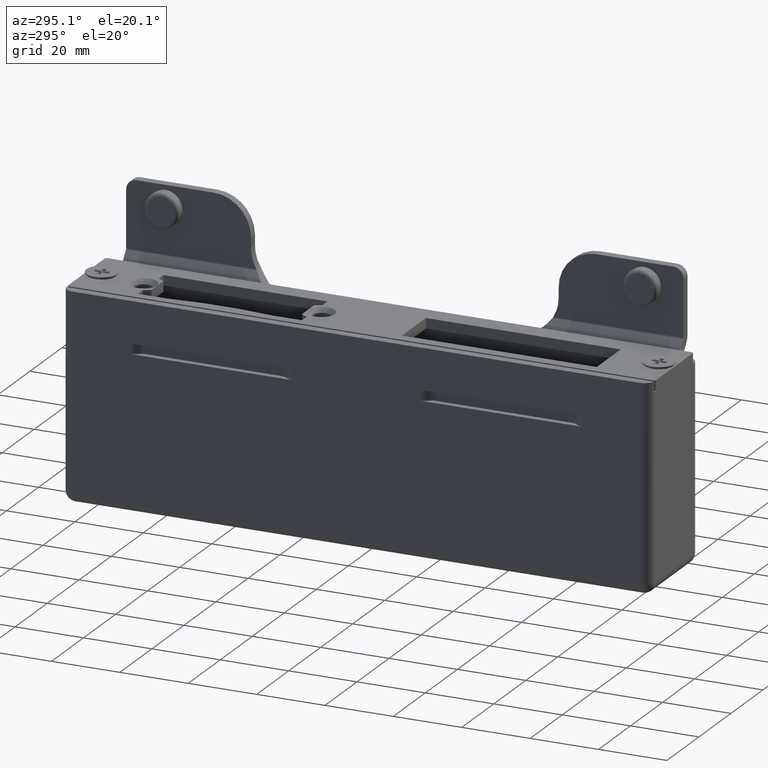
[diagram: clean part render]
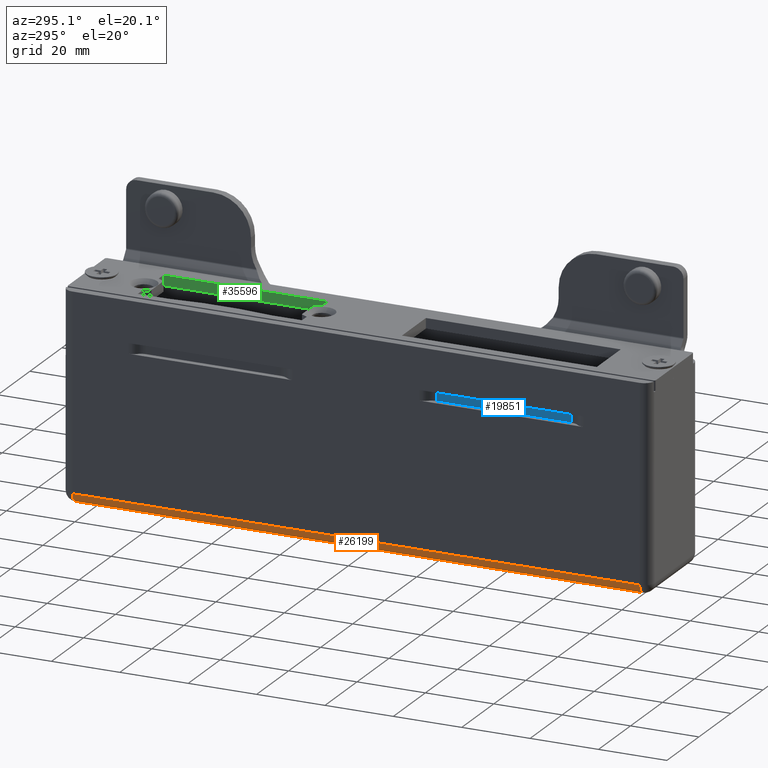
[diagram: same view with three faces highlighted in distinct colors, each labeled with its STEP entity id]
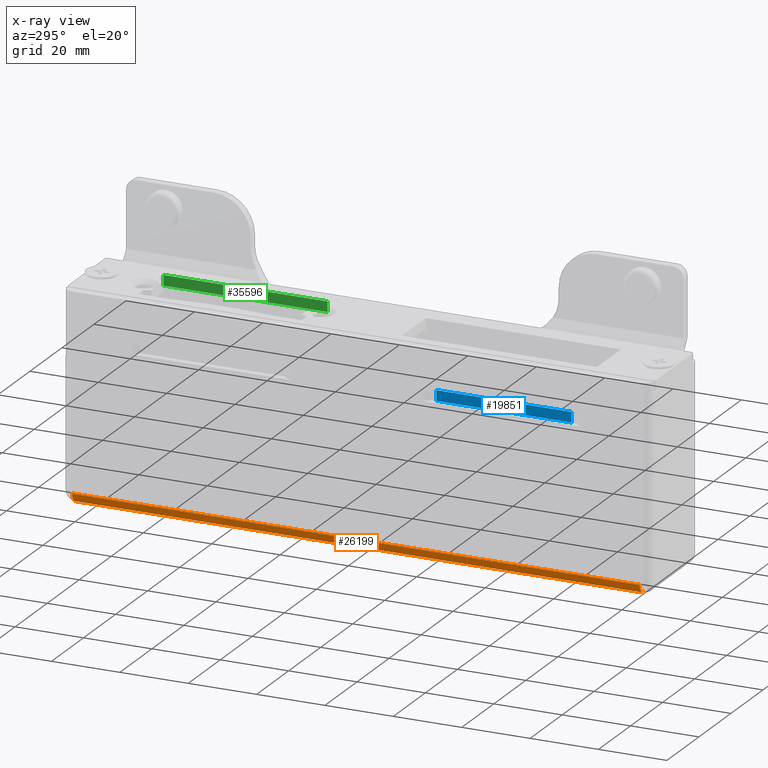
[diagram: x-ray of the same camera — body ghosted, the three highlighted faces saturated]
A machine part, auxiliary view with three faces highlighted in distinct colors.
The next image is the same camera in x-ray (body ghosted, the three faces saturated) — at least one of them is partly hidden behind the body in this view.
Their STEP definitions:

[orange] entity #26199 — the highlighted cylindrical surface (edge-blend (fillet) strip) has radius 3 mm, axis along (0, -1, 0).
#522 = DIRECTION ( 'NONE',  ( 0.000000000000000000, 0.000000000000000000, 1.000000000000000000 ) ) ;
#3270 = CIRCLE ( 'NONE', #26447, 2.999999999999999112 ) ;
#3514 = CYLINDRICAL_SURFACE ( 'NONE', #12116, 3.000000000000000888 ) ;
#4676 = CARTESIAN_POINT ( 'NONE',  ( -12.25000000000001243, 83.00000000000000000, -28.50000000000000000 ) ) ;
#5028 = ORIENTED_EDGE ( 'NONE', *, *, #15735, .T. ) ;
#6720 = VECTOR ( 'NONE', #32958, 1000.000000000000000 ) ;
#9558 = VERTEX_POINT ( 'NONE', #24503 ) ;
#11450 = VECTOR ( 'NONE', #21728, 1000.000000000000000 ) ;
#12116 = AXIS2_PLACEMENT_3D ( 'NONE', #17538, #31336, #17658 ) ;
#12141 = ORIENTED_EDGE ( 'NONE', *, *, #13830, .F. ) ;
#13116 = VERTEX_POINT ( 'NONE', #27964 ) ;
#13642 = LINE ( 'NONE', #13829, #6720 ) ;
#13829 = CARTESIAN_POINT ( 'NONE',  ( -12.25000000000000178, -1.482583435863899816E-15, -28.50000000000000000 ) ) ;
#13830 = EDGE_CURVE ( 'NONE', #20357, #18400, #3270, .T. ) ;
#14089 = DIRECTION ( 'NONE',  ( 0.000000000000000000, 1.000000000000000000, -0.000000000000000000 ) ) ;
#15735 = EDGE_CURVE ( 'NONE', #9558, #13116, #17647, .T. ) ;
#16302 = AXIS2_PLACEMENT_3D ( 'NONE', #22288, #14089, #33094 ) ;
#17394 = CARTESIAN_POINT ( 'NONE',  ( -12.25000000000001243, 83.00000000000000000, -25.50000000000000355 ) ) ;
#17538 = CARTESIAN_POINT ( 'NONE',  ( -12.25000000000001243, 86.00000000000000000, -25.50000000000000355 ) ) ;
#17647 = CIRCLE ( 'NONE', #16302, 2.999999999999999112 ) ;
#17658 = DIRECTION ( 'NONE',  ( 1.000000000000000000, 0.000000000000000000, 0.000000000000000000 ) ) ;
#17726 = ORIENTED_EDGE ( 'NONE', *, *, #18637, .F. ) ;
#18400 = VERTEX_POINT ( 'NONE', #27423 ) ;
#18637 = EDGE_CURVE ( 'NONE', #18400, #13116, #25262, .T. ) ;
#20357 = VERTEX_POINT ( 'NONE', #4676 ) ;
#21728 = DIRECTION ( 'NONE',  ( 1.210272192541958862E-16, -1.000000000000000000, 0.000000000000000000 ) ) ;
#21917 = EDGE_LOOP ( 'NONE', ( #5028, #17726, #12141, #31245 ) ) ;
#22288 = CARTESIAN_POINT ( 'NONE',  ( -12.24999999999998934, -82.99999999999997158, -25.50000000000000355 ) ) ;
#22906 = FACE_OUTER_BOUND ( 'NONE', #21917, .T. ) ;
#24503 = CARTESIAN_POINT ( 'NONE',  ( -12.24999999999999112, -82.99999999999997158, -28.50000000000000000 ) ) ;
#25262 = LINE ( 'NONE', #35435, #11450 ) ;
#26199 = ADVANCED_FACE ( 'NONE', ( #22906 ), #3514, .T. ) ;
#26447 = AXIS2_PLACEMENT_3D ( 'NONE', #17394, #33495, #522 ) ;
#27423 = CARTESIAN_POINT ( 'NONE',  ( -15.25000000000001243, 83.00000000000000000, -25.50000000000000355 ) ) ;
#27964 = CARTESIAN_POINT ( 'NONE',  ( -15.24999999999999112, -82.99999999999997158, -25.50000000000000355 ) ) ;
#31245 = ORIENTED_EDGE ( 'NONE', *, *, #33761, .F. ) ;
#31336 = DIRECTION ( 'NONE',  ( 1.210272192541958862E-16, -1.000000000000000000, 0.000000000000000000 ) ) ;
#32958 = DIRECTION ( 'NONE',  ( -1.210272192541958862E-16, 1.000000000000000000, -0.000000000000000000 ) ) ;
#33094 = DIRECTION ( 'NONE',  ( -1.156482317317871725E-15, 0.000000000000000000, -1.000000000000000000 ) ) ;
#33495 = DIRECTION ( 'NONE',  ( 0.000000000000000000, 1.000000000000000000, 0.000000000000000000 ) ) ;
#33761 = EDGE_CURVE ( 'NONE', #9558, #20357, #13642, .T. ) ;
#35435 = CARTESIAN_POINT ( 'NONE',  ( -15.25000000000001243, 86.00000000000000000, -25.50000000000000355 ) ) ;

[blue] entity #19851 — the highlighted planar face has unit normal (1, 0, 0).
#4604 = CARTESIAN_POINT ( 'NONE',  ( -13.55000000000001137, -65.00000000000000000, 16.50000000000000355 ) ) ;
#4839 = PLANE ( 'NONE',  #33644 ) ;
#7054 = CARTESIAN_POINT ( 'NONE',  ( -13.55000000000001315, -62.29629883308085425, 19.50000000000000355 ) ) ;
#7058 = CARTESIAN_POINT ( 'NONE',  ( -13.55000000000001315, -62.29629883308085425, 16.50000000000000355 ) ) ;
#7721 = LINE ( 'NONE', #34311, #27999 ) ;
#8477 = LINE ( 'NONE', #15257, #34754 ) ;
#8673 = CARTESIAN_POINT ( 'NONE',  ( -13.55000000000001137, -65.00000000000000000, 19.50000000000000355 ) ) ;
#10447 = VERTEX_POINT ( 'NONE', #31770 ) ;
#10930 = ORIENTED_EDGE ( 'NONE', *, *, #17676, .F. ) ;
#11561 = DIRECTION ( 'NONE',  ( 0.000000000000000000, 1.000000000000000000, 0.000000000000000000 ) ) ;
#12804 = DIRECTION ( 'NONE',  ( 1.000000000000000000, -0.000000000000000000, 0.000000000000000000 ) ) ;
#15257 = CARTESIAN_POINT ( 'NONE',  ( -13.55000000000001137, -65.00000000000000000, 16.50000000000000355 ) ) ;
#15327 = FACE_OUTER_BOUND ( 'NONE', #30312, .T. ) ;
#15544 = DIRECTION ( 'NONE',  ( 0.000000000000000000, 0.000000000000000000, -1.000000000000000000 ) ) ;
#16702 = CARTESIAN_POINT ( 'NONE',  ( -13.55000000000001137, -62.29629883308085425, 16.50000000000000355 ) ) ;
#16815 = DIRECTION ( 'NONE',  ( 0.000000000000000000, 0.000000000000000000, 1.000000000000000000 ) ) ;
#16916 = VECTOR ( 'NONE', #16815, 1000.000000000000000 ) ;
#17555 = DIRECTION ( 'NONE',  ( 0.000000000000000000, 1.000000000000000000, 0.000000000000000000 ) ) ;
#17676 = EDGE_CURVE ( 'NONE', #35336, #10447, #8477, .T. ) ;
#18807 = ORIENTED_EDGE ( 'NONE', *, *, #30010, .T. ) ;
#18840 = EDGE_CURVE ( 'NONE', #30516, #30340, #33018, .T. ) ;
#19851 = ADVANCED_FACE ( 'NONE', ( #15327 ), #4839, .F. ) ;
#24545 = EDGE_CURVE ( 'NONE', #35336, #30516, #27703, .T. ) ;
#25510 = CARTESIAN_POINT ( 'NONE',  ( -13.55000000000001137, -22.70370116691915996, 19.50000000000000355 ) ) ;
#26752 = ORIENTED_EDGE ( 'NONE', *, *, #24545, .T. ) ;
#27012 = VECTOR ( 'NONE', #11561, 1000.000000000000000 ) ;
#27065 = ORIENTED_EDGE ( 'NONE', *, *, #18840, .T. ) ;
#27703 = LINE ( 'NONE', #16702, #16916 ) ;
#27999 = VECTOR ( 'NONE', #15544, 1000.000000000000000 ) ;
#30010 = EDGE_CURVE ( 'NONE', #30340, #10447, #7721, .T. ) ;
#30312 = EDGE_LOOP ( 'NONE', ( #27065, #18807, #10930, #26752 ) ) ;
#30340 = VERTEX_POINT ( 'NONE', #25510 ) ;
#30516 = VERTEX_POINT ( 'NONE', #7054 ) ;
#31770 = CARTESIAN_POINT ( 'NONE',  ( -13.55000000000001315, -22.70370116691914575, 16.50000000000000355 ) ) ;
#32050 = DIRECTION ( 'NONE',  ( 0.000000000000000000, 0.000000000000000000, -1.000000000000000000 ) ) ;
#33018 = LINE ( 'NONE', #8673, #27012 ) ;
#33644 = AXIS2_PLACEMENT_3D ( 'NONE', #4604, #12804, #32050 ) ;
#34311 = CARTESIAN_POINT ( 'NONE',  ( -13.55000000000001137, -22.70370116691914575, 16.50000000000000355 ) ) ;
#34754 = VECTOR ( 'NONE', #17555, 1000.000000000000000 ) ;
#35336 = VERTEX_POINT ( 'NONE', #7058 ) ;

[green] entity #35596 — the highlighted planar face has unit normal (-1, 0, 0).
#336 = LINE ( 'NONE', #22834, #11967 ) ;
#2842 = CARTESIAN_POINT ( 'NONE',  ( 6.499999999999988454, 66.50000000000002842, 3.000000000000002665 ) ) ;
#6681 = CARTESIAN_POINT ( 'NONE',  ( 6.499999999999988454, 66.50000000000002842, 3.000000000000002665 ) ) ;
#6998 = ORIENTED_EDGE ( 'NONE', *, *, #33272, .T. ) ;
#8873 = LINE ( 'NONE', #28912, #19231 ) ;
#10609 = DIRECTION ( 'NONE',  ( -0.000000000000000000, -0.000000000000000000, -1.000000000000000000 ) ) ;
#10740 = LINE ( 'NONE', #29536, #31850 ) ;
#11046 = LINE ( 'NONE', #6681, #20541 ) ;
#11967 = VECTOR ( 'NONE', #33889, 1000.000000000000000 ) ;
#13352 = EDGE_CURVE ( 'NONE', #34854, #14711, #8873, .T. ) ;
#14711 = VERTEX_POINT ( 'NONE', #30883 ) ;
#15358 = EDGE_CURVE ( 'NONE', #34854, #15492, #10740, .T. ) ;
#15492 = VERTEX_POINT ( 'NONE', #28199 ) ;
#17674 = DIRECTION ( 'NONE',  ( -0.000000000000000000, -0.000000000000000000, -1.000000000000000000 ) ) ;
#17992 = AXIS2_PLACEMENT_3D ( 'NONE', #2842, #22718, #30631 ) ;
#18746 = VERTEX_POINT ( 'NONE', #32775 ) ;
#18747 = FACE_OUTER_BOUND ( 'NONE', #30347, .T. ) ;
#19231 = VECTOR ( 'NONE', #21087, 1000.000000000000000 ) ;
#19336 = PLANE ( 'NONE',  #17992 ) ;
#20541 = VECTOR ( 'NONE', #17674, 1000.000000000000000 ) ;
#21087 = DIRECTION ( 'NONE',  ( -2.891205793294685722E-16, 1.000000000000000000, -0.000000000000000000 ) ) ;
#22718 = DIRECTION ( 'NONE',  ( -1.000000000000000000, 2.891205793294678326E-16, 0.000000000000000000 ) ) ;
#22834 = CARTESIAN_POINT ( 'NONE',  ( 6.499999999999988454, 66.50000000000002842, 0.000000000000000000 ) ) ;
#28199 = CARTESIAN_POINT ( 'NONE',  ( 6.499999999999988454, 18.50000000000001421, 0.000000000000000000 ) ) ;
#28912 = CARTESIAN_POINT ( 'NONE',  ( 6.499999999999985789, 27.49999999999998934, 3.000000000000002665 ) ) ;
#29536 = CARTESIAN_POINT ( 'NONE',  ( 6.499999999999988454, 18.50000000000001421, 3.000000000000002665 ) ) ;
#30347 = EDGE_LOOP ( 'NONE', ( #32356, #31341, #32513, #6998 ) ) ;
#30631 = DIRECTION ( 'NONE',  ( -2.891205793294678326E-16, -1.000000000000000000, 0.000000000000000000 ) ) ;
#30883 = CARTESIAN_POINT ( 'NONE',  ( 6.499999999999988454, 66.50000000000002842, 3.000000000000002665 ) ) ;
#31341 = ORIENTED_EDGE ( 'NONE', *, *, #15358, .F. ) ;
#31573 = EDGE_CURVE ( 'NONE', #15492, #18746, #336, .T. ) ;
#31850 = VECTOR ( 'NONE', #10609, 1000.000000000000000 ) ;
#32356 = ORIENTED_EDGE ( 'NONE', *, *, #31573, .F. ) ;
#32513 = ORIENTED_EDGE ( 'NONE', *, *, #13352, .T. ) ;
#32775 = CARTESIAN_POINT ( 'NONE',  ( 6.499999999999988454, 66.50000000000002842, 0.000000000000000000 ) ) ;
#33272 = EDGE_CURVE ( 'NONE', #14711, #18746, #11046, .T. ) ;
#33889 = DIRECTION ( 'NONE',  ( 2.891205793294678326E-16, 1.000000000000000000, -0.000000000000000000 ) ) ;
#34084 = CARTESIAN_POINT ( 'NONE',  ( 6.499999999999988454, 18.50000000000001421, 3.000000000000002665 ) ) ;
#34854 = VERTEX_POINT ( 'NONE', #34084 ) ;
#35596 = ADVANCED_FACE ( 'NONE', ( #18747 ), #19336, .T. ) ;